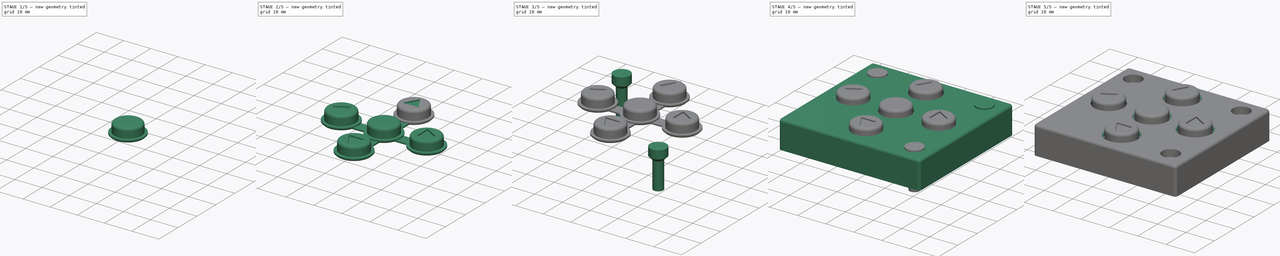
[diagram: build sequence overview — one tinted view per stage of 5, left to right]
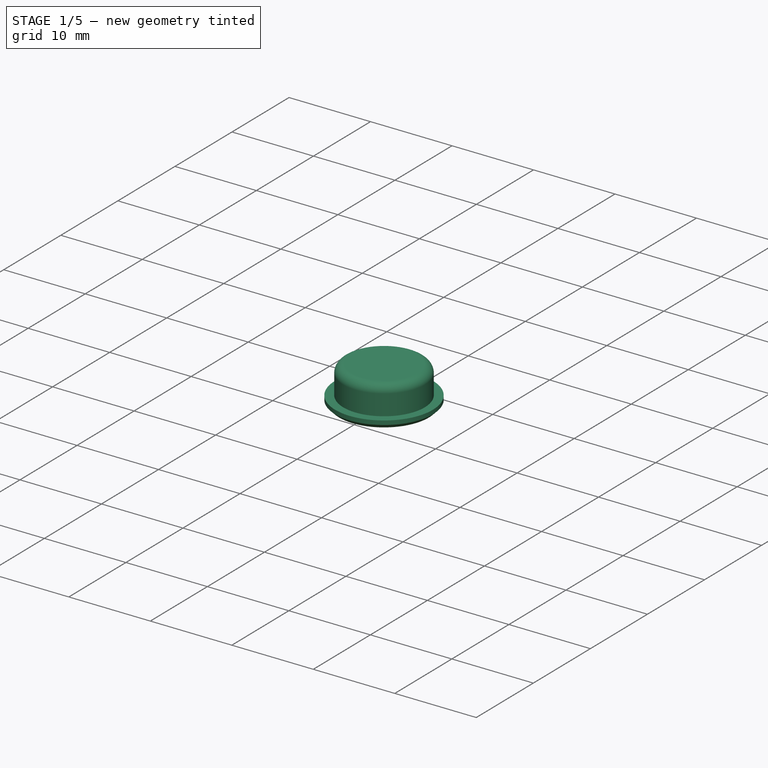
[diagram: stage 1 of 5 — iso view after this stage's code; geometry added in this stage tinted green]
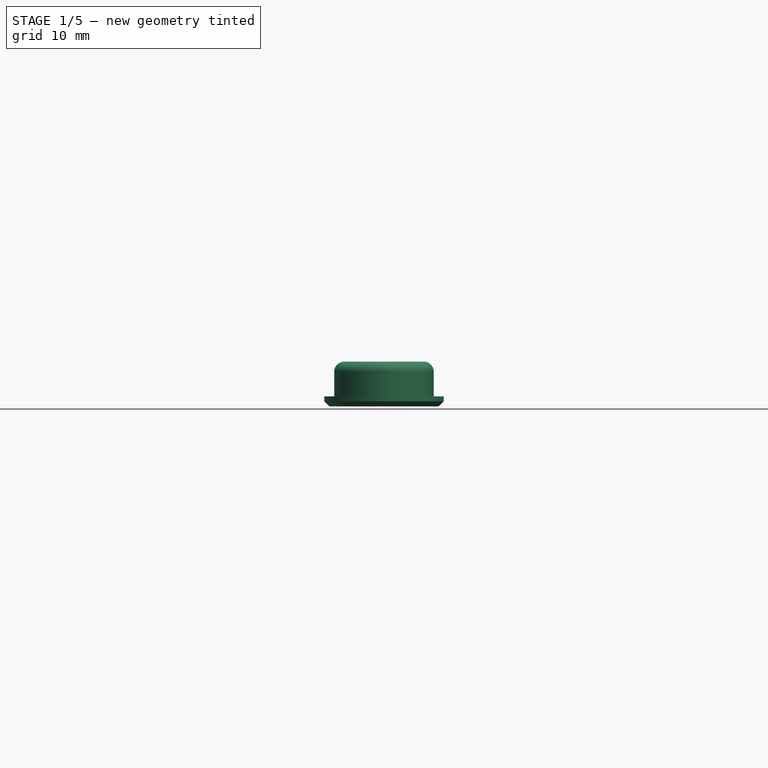
[diagram: stage 1 of 5 — front view after this stage's code; geometry added in this stage tinted green]
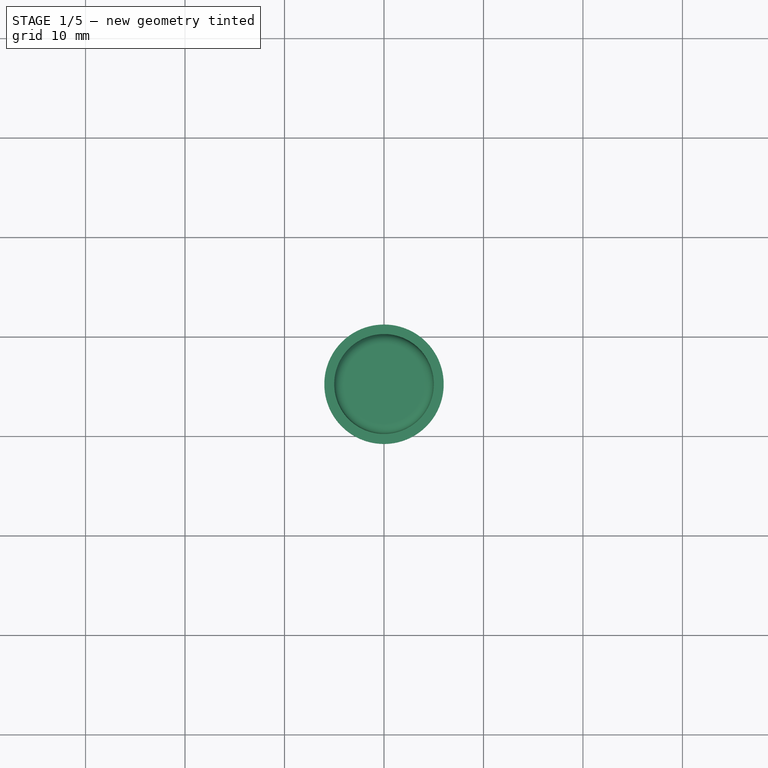
[diagram: stage 1 of 5 — top view after this stage's code; geometry added in this stage tinted green]
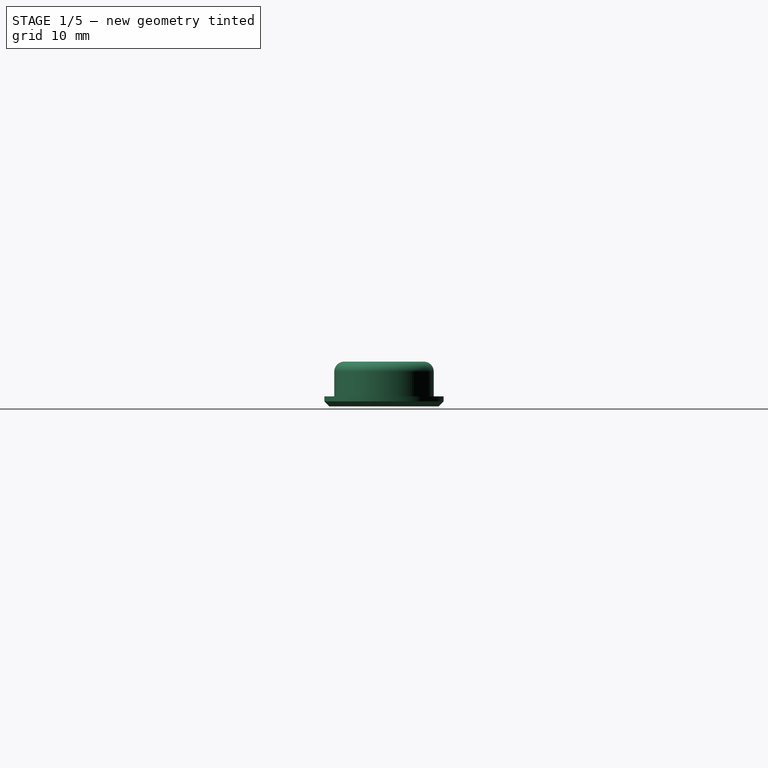
[diagram: stage 1 of 5 — right view after this stage's code; geometry added in this stage tinted green]
FCSTD DOCUMENT  (FreeCAD 0.14R3692 (Git))
Label: Addon-KeypadButtons
License: CC-BY 3.0
LicenseURL: http://creativecommons.org/licenses/by/3.0/
objects: Part::FeaturePython×5, Sketcher::SketchObject×5, Part::Cylinder×4, Part::MultiFuse×4, PartDesign::Pocket×4, Part::Box×3, Part::Chamfer×2, PartDesign::PolarPattern×2, PartDesign::Mirrored×2, Part::Fillet×1, Part::Thickness×1, PartDesign::Pad×1, PartDesign::MultiTransform×1, Part::Cone×1, Part::Cut×1
note: 42 computed .brp shape members not serialized (recipe doc carries the construction recipe); baked Part::Feature solids carry a one-line shape summary decoded from their .brp

FEATURE [Part::Cylinder] Cylinder
  Angle = 360
  Height = 1
  Radius = 6
FEATURE [Part::Cylinder] Cylinder001
  Angle = 360
  Height = 4.5
  Radius = 5
FEATURE [Part::Fillet] Fillet
  Base = -> Cylinder001
  Edges = 1 edges r=1: [Edge1]
FEATURE [Part::Chamfer] Chamfer
  Base = -> Cylinder
  Edges = 1 edges r=0.5: [Edge3]
FEATURE [Part::MultiFuse] Fusion
  Shapes = -> [Fillet,Chamfer]
FEATURE [Part::FeaturePython] Clone  label="Clone of Fusion"  # Draft clone (typed FeaturePython)
  Objects = -> [Fusion]
  Placement = pos=(0,15.24,0) rot=(0,0,1;0rad)
  Scale = (1,1,1)
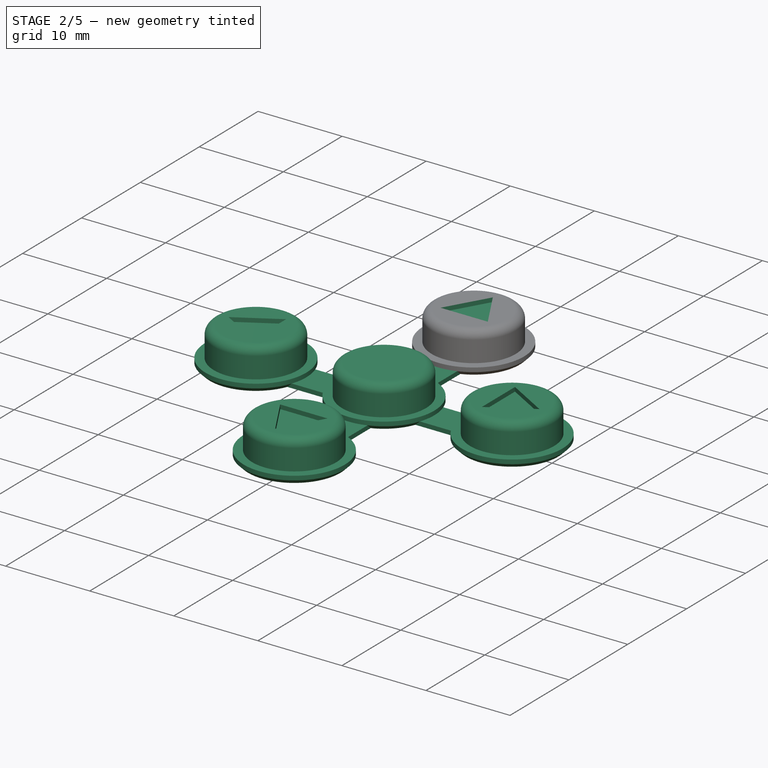
[diagram: stage 2 of 5 — iso view after this stage's code; geometry added in this stage tinted green]
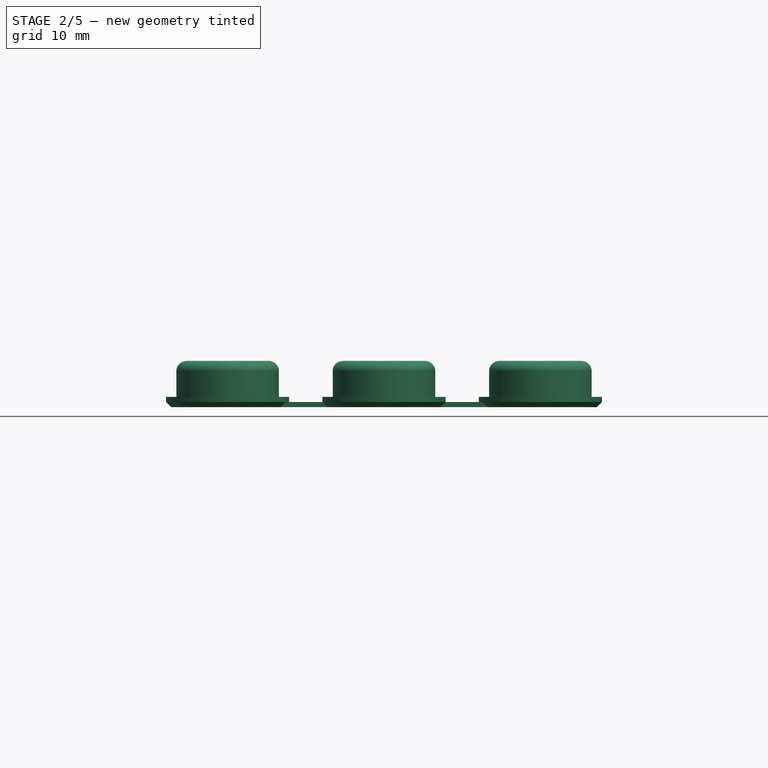
[diagram: stage 2 of 5 — front view after this stage's code; geometry added in this stage tinted green]
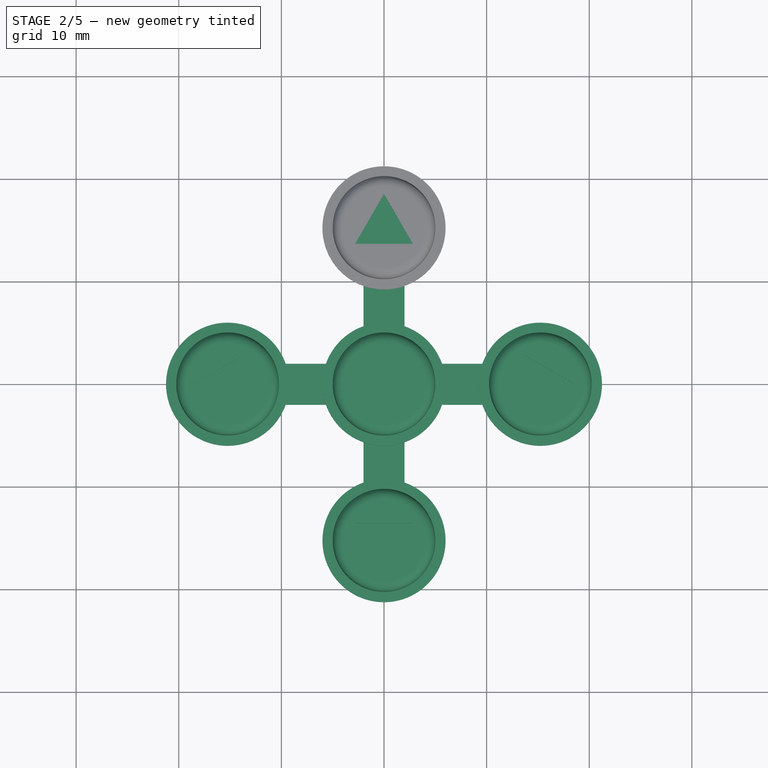
[diagram: stage 2 of 5 — top view after this stage's code; geometry added in this stage tinted green]
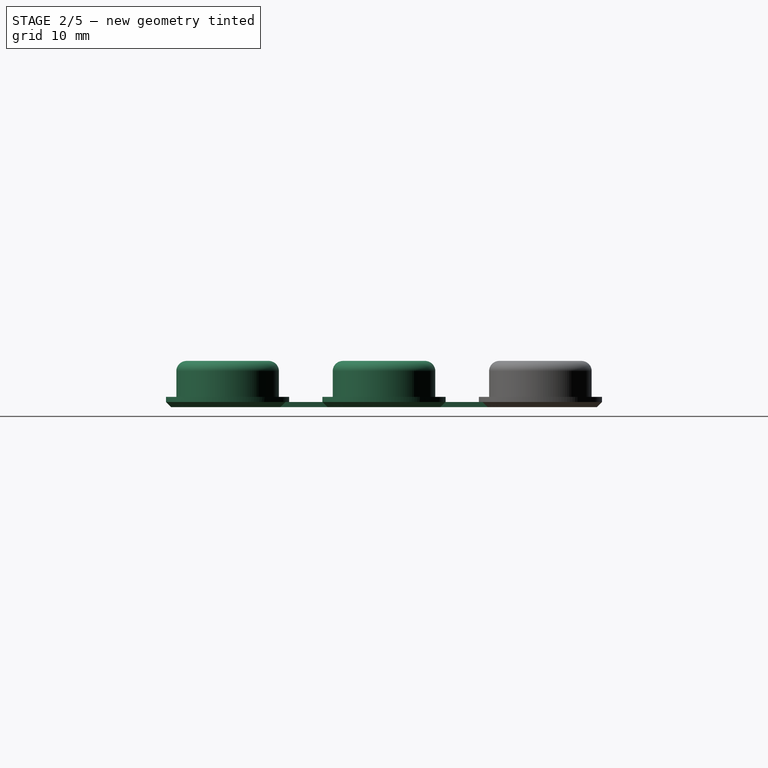
[diagram: stage 2 of 5 — right view after this stage's code; geometry added in this stage tinted green]
FEATURE [Part::Box] Box  label="Cube"
  Height = 0.5
  Length = 30.48
  Placement = pos=(-15.24,-2,0) rot=(0,0,1;0rad)
  Width = 4
FEATURE [Part::Box] Box001  label="Cube001"
  Height = 0.5
  Length = 30.48
  Placement = pos=(2,-15.24,0) rot=(0,0,1;1.5708rad)
  Width = 4
FEATURE [Part::FeaturePython] Array  # Draft array (typed FeaturePython)
  Angle = 360
  ArrayType = 1
  Axis = (0,0,1)
  Base = -> Clone
  Center = (0,0,0)
  IntervalX = (1,0,0)
  IntervalY = (0,1,0)
  IntervalZ = (0,0,1)
  NumberPolar = 4
  NumberX = 2
  NumberY = 2
  NumberZ = 1
FEATURE [Part::MultiFuse] Fusion001
  Shapes = -> [Array,Fusion,Box,Box001]
FEATURE [Sketcher::SketchObject] Sketch004
  ExternalGeometry = -> [Fusion001]
  Placement = pos=(0,0,4.5) rot=(0,0,1;0rad)
  Support = -> Fusion001 [Face3]
  sketch-geometry (4):
    g0: Circle [constr] CenterX=0 CenterY=15.24 CenterZ=0 NormalX=0 NormalY=0 NormalZ=1 Radius=3.25
    g1: LineSegment StartX=0 StartY=18.49 StartZ=0 EndX=-2.81458 EndY=13.615 EndZ=0
    g2: LineSegment StartX=-2.81458 StartY=13.615 StartZ=0 EndX=2.81458 EndY=13.615 EndZ=0
    g3: LineSegment StartX=2.81458 StartY=13.615 StartZ=0 EndX=0 EndY=18.49 EndZ=0
  constraints (11):
    c: Coincident(g0,g-3)
    c: Radius(g0) = 3.25
    c: PointOnObject(g1,g0)
    c: PointOnObject(g1,g0)
    c: Coincident(g1,g2)
    c: Coincident(g2,g3)
    c: Coincident(g3,g1)
    c: PointOnObject(g2,g0)
    c: Horizontal(g2)
    c: Equal(g2,g3)
    c: Equal(g3,g1)
FEATURE [PartDesign::Pocket] Pocket003
  Length = 0.5
  Sketch = -> Sketch004
  Type = 0
FEATURE [PartDesign::PolarPattern] PolarPattern001
  Angle = 360
  Axis = -> Sketch004 [N_Axis]
  Occurrences = 4
  Originals = -> [Pocket003]
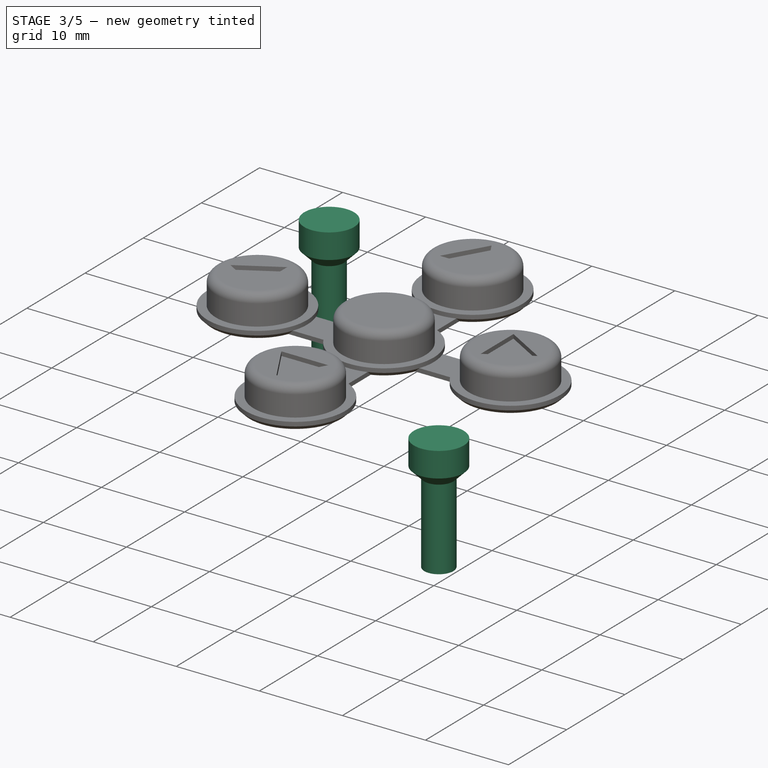
[diagram: stage 3 of 5 — iso view after this stage's code; geometry added in this stage tinted green]
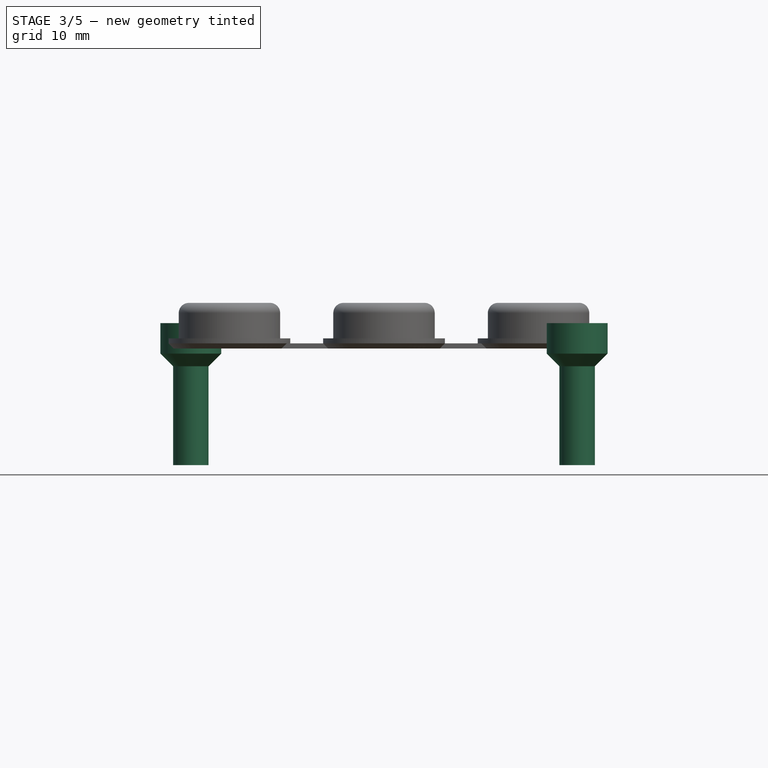
[diagram: stage 3 of 5 — front view after this stage's code; geometry added in this stage tinted green]
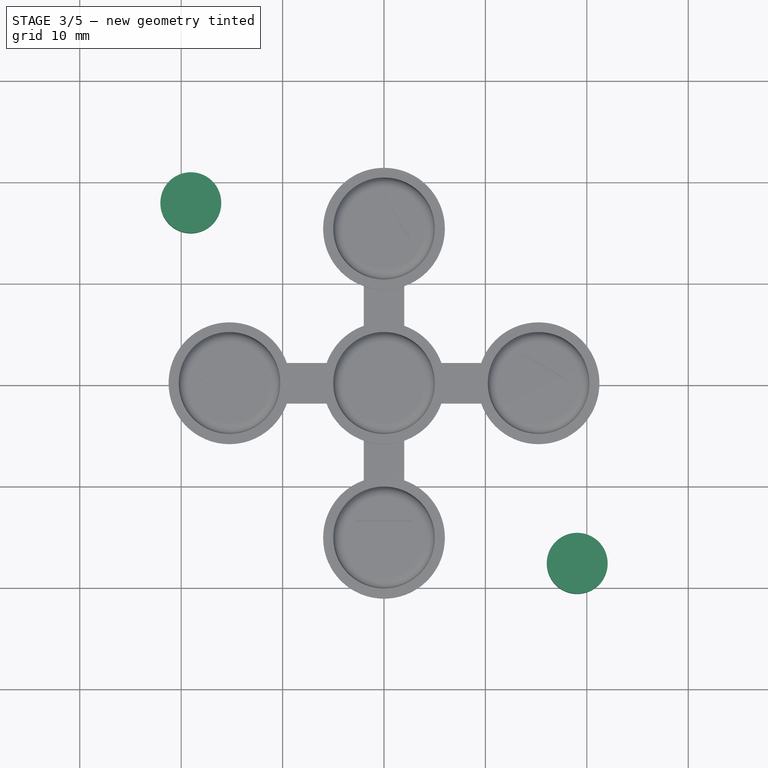
[diagram: stage 3 of 5 — top view after this stage's code; geometry added in this stage tinted green]
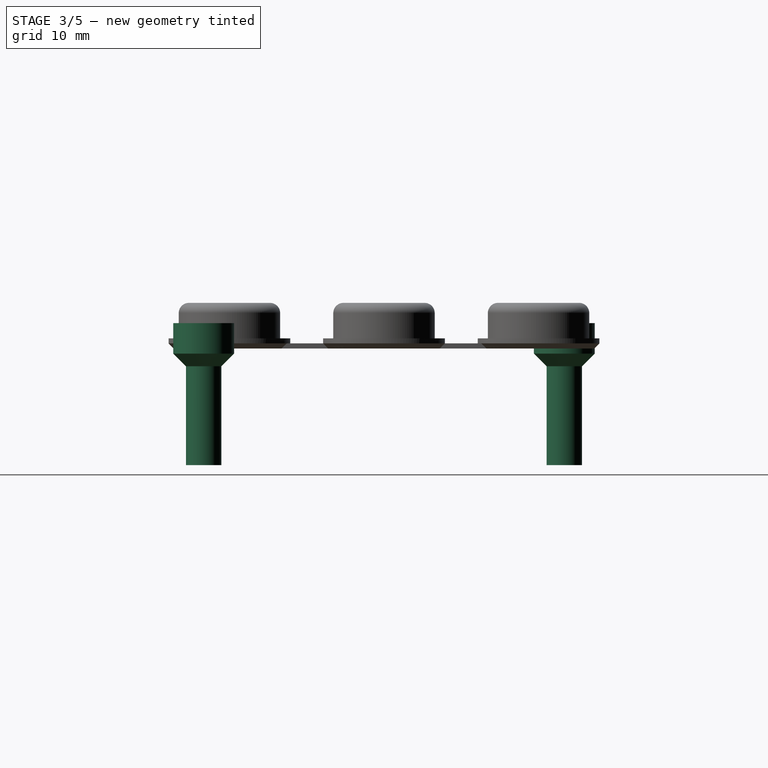
[diagram: stage 3 of 5 — right view after this stage's code; geometry added in this stage tinted green]
FEATURE [Part::Cylinder] Cylinder002
  Angle = 360
  Height = 10
  Radius = 1.75
FEATURE [Part::Cone] Cone
  Angle = 360
  Height = 2
  Placement = pos=(0,0,9) rot=(0,0,1;0rad)
  Radius1 = 1
  Radius2 = 3
FEATURE [Part::Cylinder] Cylinder003
  Angle = 360
  Height = 3
  Placement = pos=(0,0,11) rot=(0,0,1;0rad)
  Radius = 3
FEATURE [Part::MultiFuse] Fusion002
  Shapes = -> [Cylinder003,Cone,Cylinder002]
FEATURE [Part::FeaturePython] Clone002  label="Clone of Fusion003"  # Draft clone (typed FeaturePython)
  Objects = -> [Fusion002]
  Placement = pos=(-19.05,17.78,-11.5) rot=(0,0,1;0rad)
  Scale = (1,1,1)
FEATURE [Part::FeaturePython] Clone003  label="Clone of Fusion004"  # Draft clone (typed FeaturePython)
  Objects = -> [Fusion002]
  Placement = pos=(19.05,-17.78,-11.5) rot=(0,0,1;0rad)
  Scale = (1,1,1)
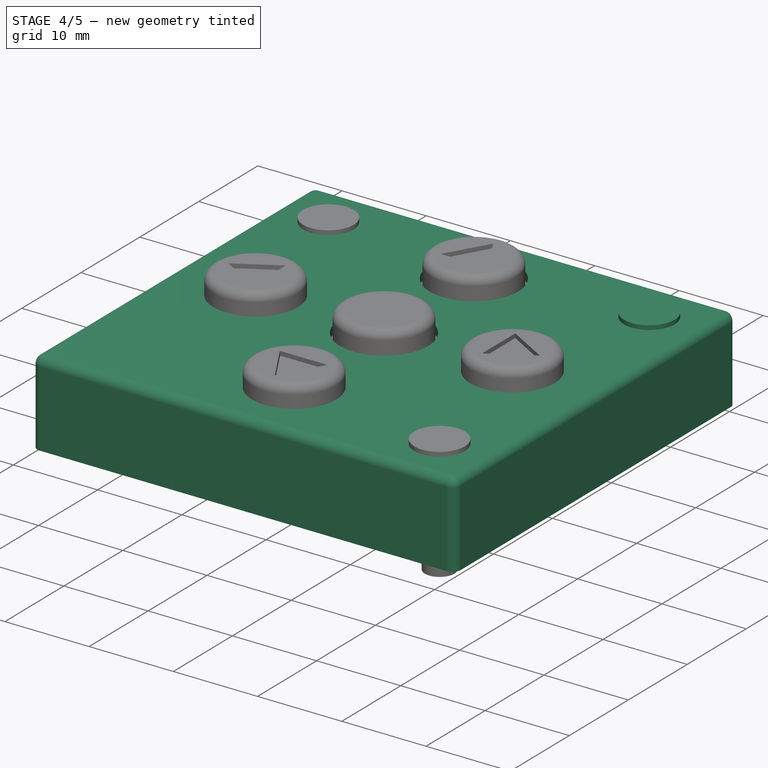
[diagram: stage 4 of 5 — iso view after this stage's code; geometry added in this stage tinted green]
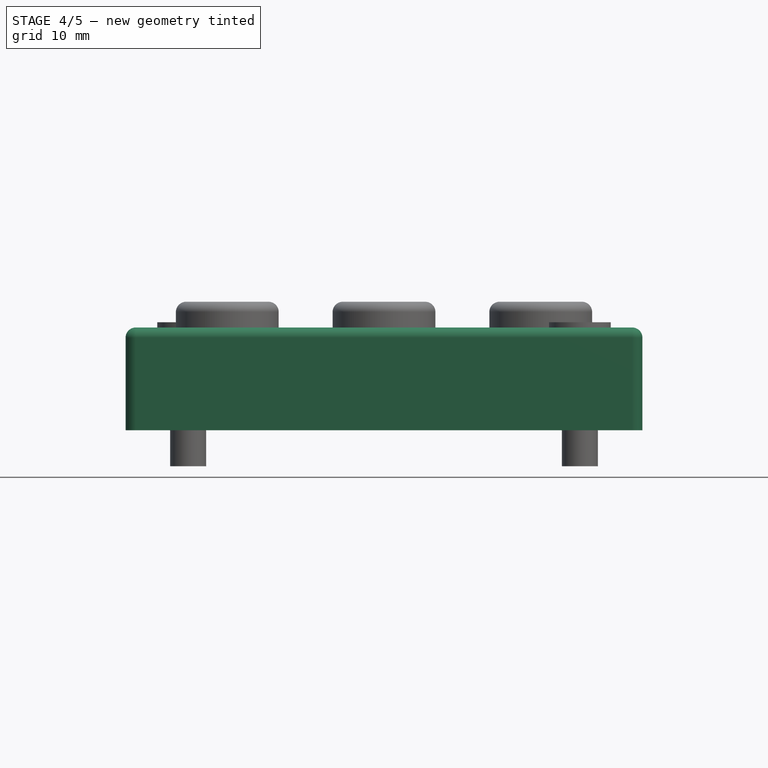
[diagram: stage 4 of 5 — front view after this stage's code; geometry added in this stage tinted green]
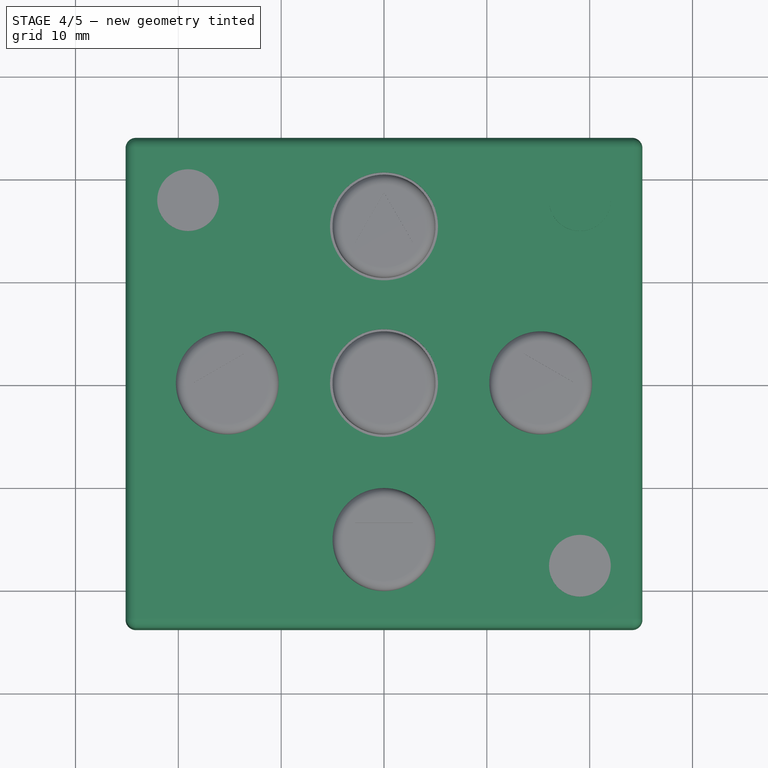
[diagram: stage 4 of 5 — top view after this stage's code; geometry added in this stage tinted green]
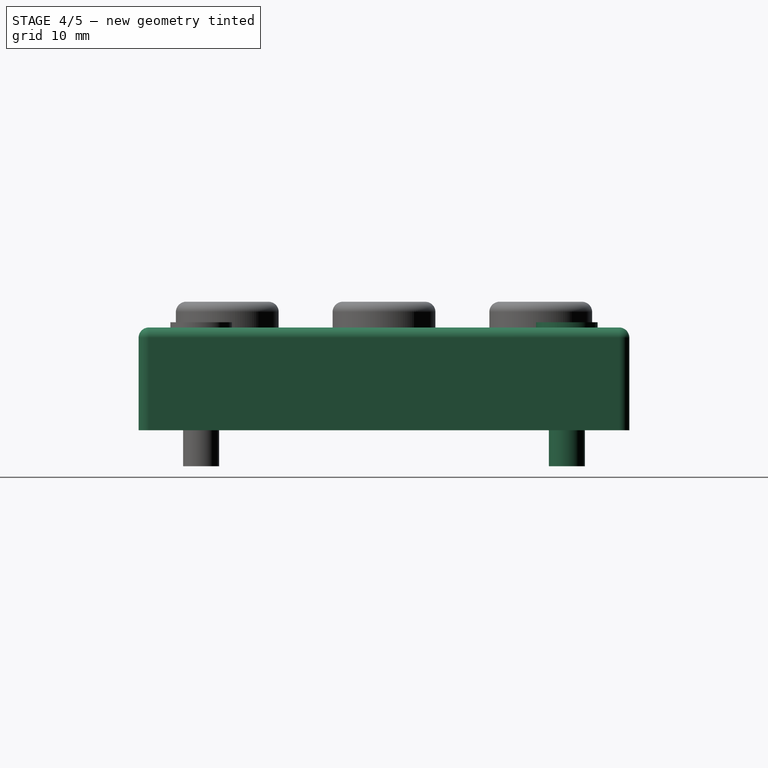
[diagram: stage 4 of 5 — right view after this stage's code; geometry added in this stage tinted green]
FEATURE [Part::Box] Box002  label="Cube002"
  Height = 9
  Length = 48.26
  Placement = pos=(-24.13,-22.86,-8) rot=(0,0,1;0rad)
  Width = 45.72
FEATURE [Part::Thickness] Thickness
  Faces = -> Box002 [Face5]
  Intersection = false
  Join = 0
  Mode = 0
  SelfIntersection = false
  Value = 1
FEATURE [Sketcher::SketchObject] Sketch
  Placement = pos=(0,0,2) rot=(0,0,1;0rad)
  Support = -> Thickness [Face23]
  sketch-geometry (1):
    g0: Circle CenterX=0 CenterY=0 CenterZ=0 NormalX=0 NormalY=0 NormalZ=1 Radius=5.25
  constraints (2):
    c: Coincident(g0,g-1)
    c: Radius(g0) = 5.25
FEATURE [PartDesign::Pocket] Pocket
  Length = 5
  Sketch = -> Sketch
  Type = 0
FEATURE [Sketcher::SketchObject] Sketch001
  Placement = pos=(0,0,2) rot=(0,0,1;0rad)
  Support = -> Pocket [Face16]
  sketch-geometry (1):
    g0: Circle CenterX=0 CenterY=15.24 CenterZ=0 NormalX=0 NormalY=0 NormalZ=1 Radius=5.25
  constraints (3):
    c: PointOnObject(g0,g-2)
    c: Radius(g0) = 5.25
    c: DistanceY(g-1,g0) = 15.24
FEATURE [PartDesign::Pocket] Pocket001
  Length = 5
  Sketch = -> Sketch001
  Type = 0
FEATURE [Part::FeaturePython] Clone001  label="Clone of Fusion002"  # Draft clone (typed FeaturePython)
  Objects = -> [Fusion002]
  Placement = pos=(19.05,17.78,-11.5) rot=(0,0,1;0rad)
  Scale = (1,1,1)
FEATURE [Part::MultiFuse] Fusion003
  Shapes = -> [Clone002,Clone003,Clone001]
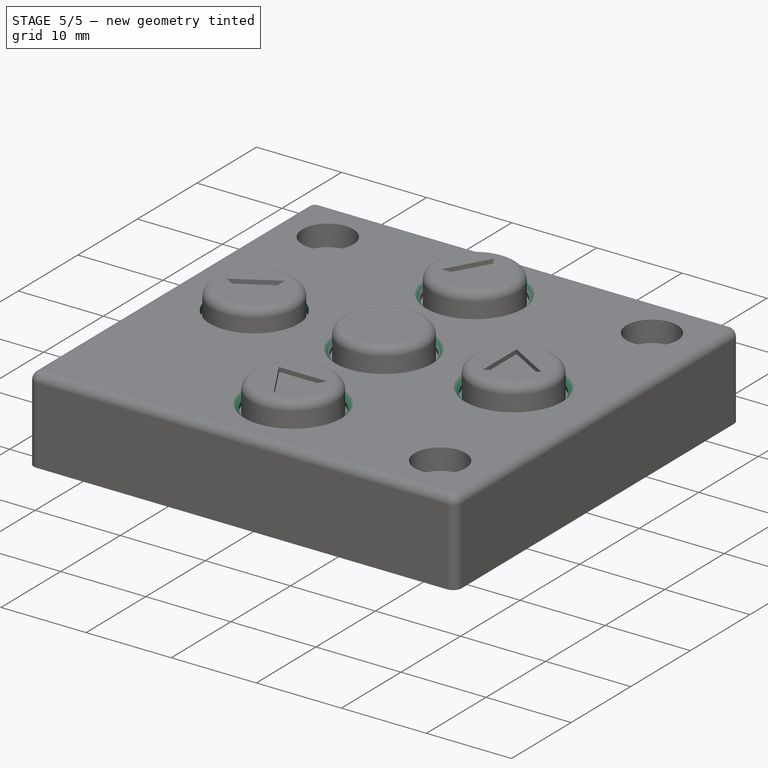
[diagram: stage 5 of 5 — iso view after this stage's code; geometry added in this stage tinted green]
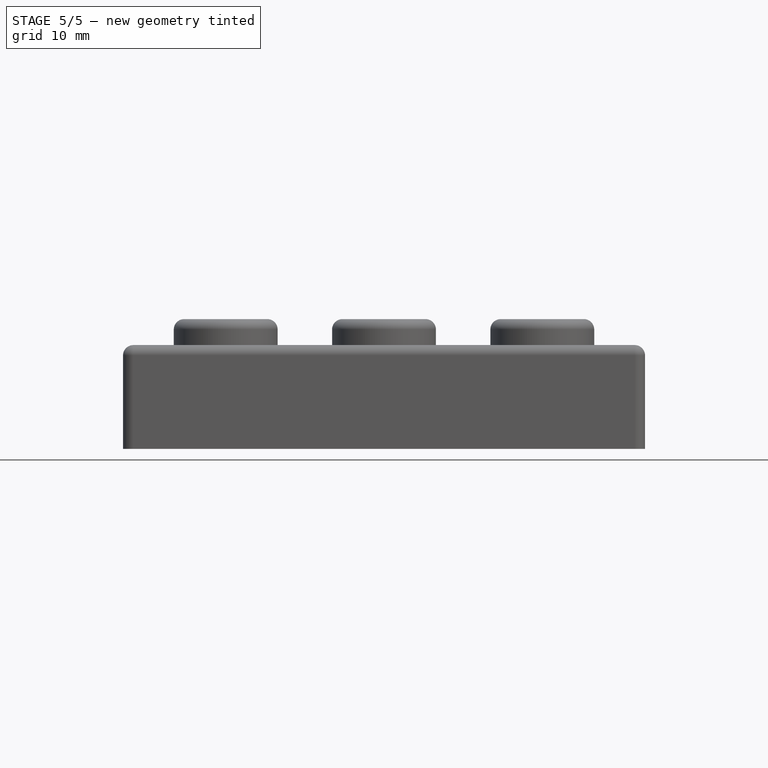
[diagram: stage 5 of 5 — front view after this stage's code; geometry added in this stage tinted green]
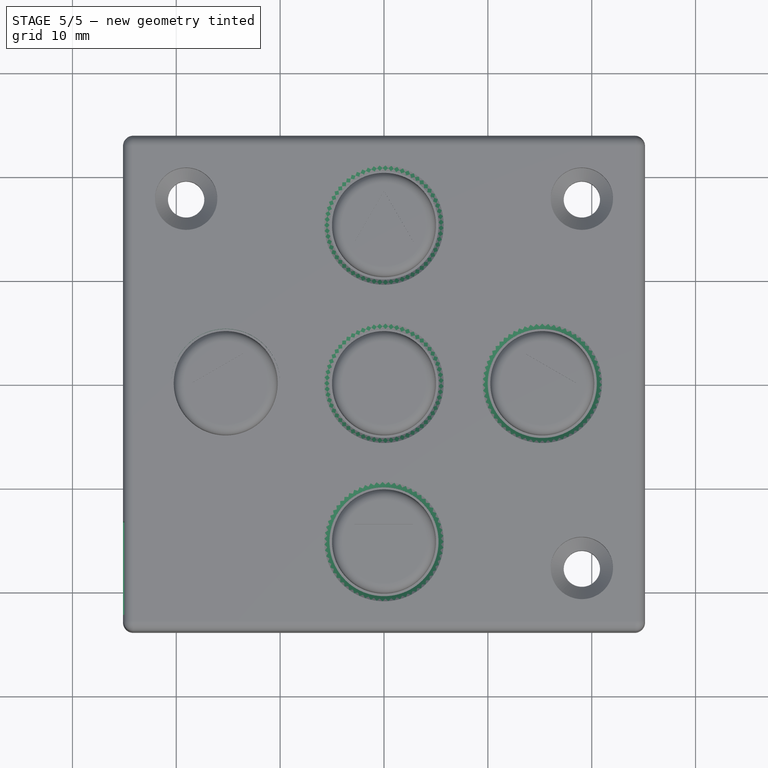
[diagram: stage 5 of 5 — top view after this stage's code; geometry added in this stage tinted green]
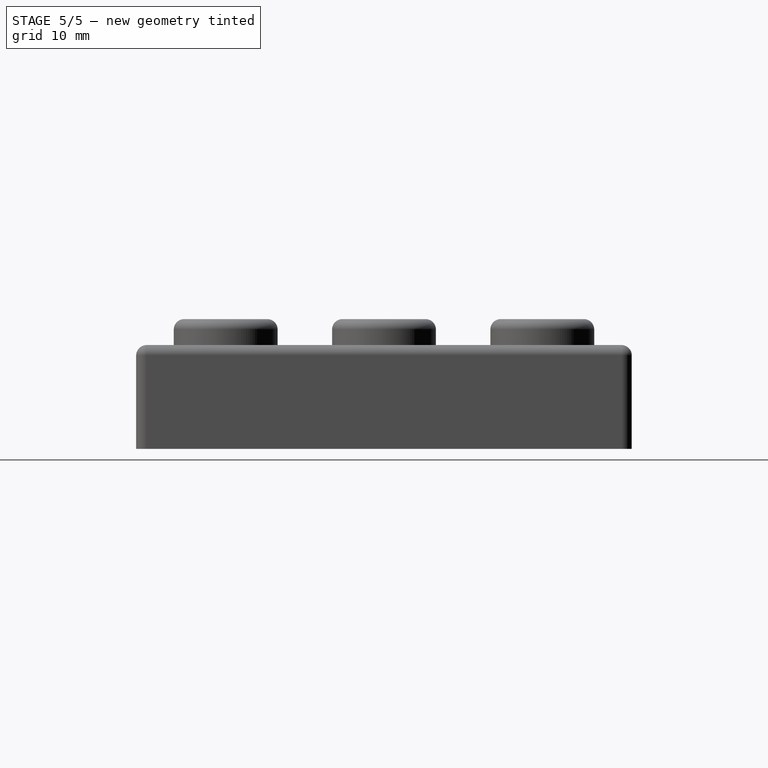
[diagram: stage 5 of 5 — right view after this stage's code; geometry added in this stage tinted green]
FEATURE [PartDesign::PolarPattern] PolarPattern
  Angle = 360
  Axis = -> Sketch001 [N_Axis]
  Occurrences = 4
  Originals = -> [Pocket001]
FEATURE [Sketcher::SketchObject] Sketch002
  Placement = pos=(0,0,1) rot=(1,0,0;3.14159rad)
  Support = -> PolarPattern [Face3]
  sketch-geometry (5):
    g0: ArcOfCircle CenterX=19.05 CenterY=-17.78 CenterZ=0 NormalX=0 NormalY=0 NormalZ=1 Radius=4 StartAngle=1.5708 EndAngle=3.14159
    g1: LineSegment StartX=15.05 StartY=-17.78 StartZ=0 EndX=15.05 EndY=-23.36 EndZ=0
    g2: LineSegment StartX=15.05 StartY=-23.36 StartZ=0 EndX=24.63 EndY=-23.36 EndZ=0
    g3: LineSegment StartX=24.63 StartY=-23.36 StartZ=0 EndX=24.63 EndY=-13.78 EndZ=0
    g4: LineSegment StartX=24.63 StartY=-13.78 StartZ=0 EndX=19.05 EndY=-13.78 EndZ=0
  constraints (16):
    c: DistanceX(g-1,g0) = 19.05
    c: DistanceY(g-1,g0) = -17.78
    c: Radius(g0) = 4
    c: Coincident(g1,g2)
    c: Horizontal(g2)
    c: Coincident(g2,g3)
    c: Coincident(g3,g4)
    c: Horizontal(g4)
    c: Coincident(g4,g0)
    c: Coincident(g1,g0)
    c: Tangent(g0,g1)
    c: Vertical(g1)
    c: Tangent(g4,g0)
    c: Vertical(g3)
    c: DistanceX(g-1,g2) = 24.63
    c: DistanceY(g-1,g2) = -23.36
FEATURE [PartDesign::Pad] Pad
  Length = 6
  Length2 = 100
  Sketch = -> Sketch002
  Type = 0
FEATURE [PartDesign::Mirrored] Mirrored
  MirrorPlane = -> Sketch002 [V_Axis]
FEATURE [PartDesign::Mirrored] Mirrored001
  MirrorPlane = -> Sketch002 [H_Axis]
FEATURE [PartDesign::MultiTransform] MultiTransform
  Originals = -> [Pad]
  Transformations = -> [Mirrored,Mirrored001]
FEATURE [Sketcher::SketchObject] Sketch003
  Placement = pos=(-25.13,0,0) rot=(0.57735,-0.57735,-0.57735;2.0944rad)
  Support = -> MultiTransform [Face13]
  sketch-geometry (4):
    g0: LineSegment StartX=22.28 StartY=-5 StartZ=0 EndX=13.28 EndY=-5 EndZ=0
    g1: LineSegment StartX=13.28 StartY=-5 StartZ=0 EndX=13.28 EndY=1.5 EndZ=0
    g2: LineSegment StartX=13.28 StartY=1.5 StartZ=0 EndX=22.28 EndY=1.5 EndZ=0
    g3: LineSegment StartX=22.28 StartY=1.5 StartZ=0 EndX=22.28 EndY=-5 EndZ=0
  constraints (12):
    c: Coincident(g0,g1)
    c: Coincident(g1,g2)
    c: Coincident(g2,g3)
    c: Coincident(g3,g0)
    c: Horizontal(g0)
    c: Horizontal(g2)
    c: Vertical(g1)
    c: Vertical(g3)
    c: DistanceX(g0) = -9
    c: DistanceY(g3) = -6.5
    c: DistanceY(g-1,g2) = 1.5
    c: DistanceX(g-1,g2) = 22.28
FEATURE [PartDesign::Pocket] Pocket002
  Length = 11.35
  Sketch = -> Sketch003
  Type = 0
  UpToFace = -> MultiTransform [Face26]
FEATURE [Part::Cut] Cut
  Base = -> Pocket002
  Tool = -> Fusion003
FEATURE [Part::Chamfer] Chamfer001
  Base = -> Cut
  Edges = 4 edges r=0.5: [Edge103,Edge105,Edge109,Edge111]
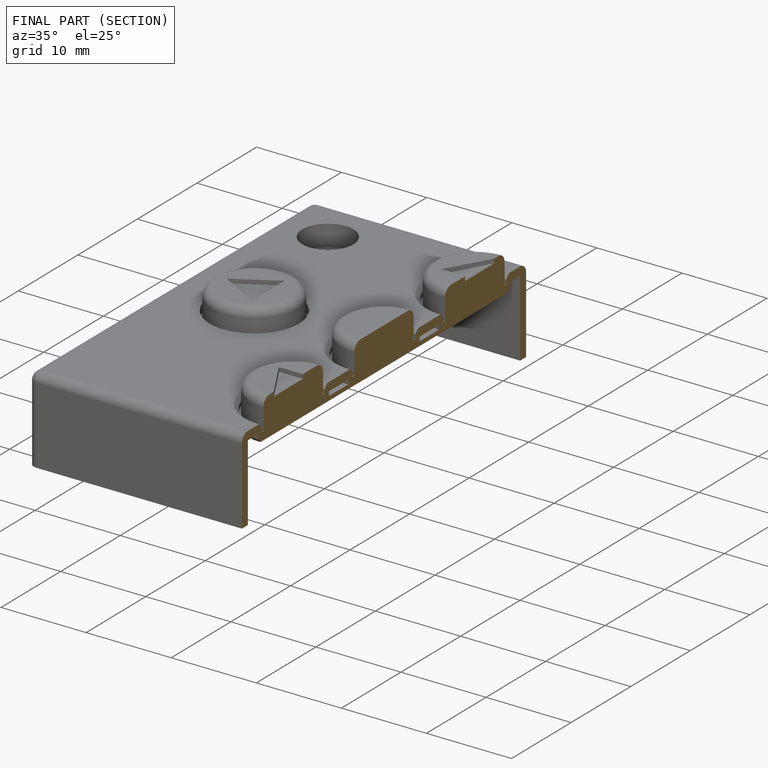
[diagram: finished part — half-section view (interior)]
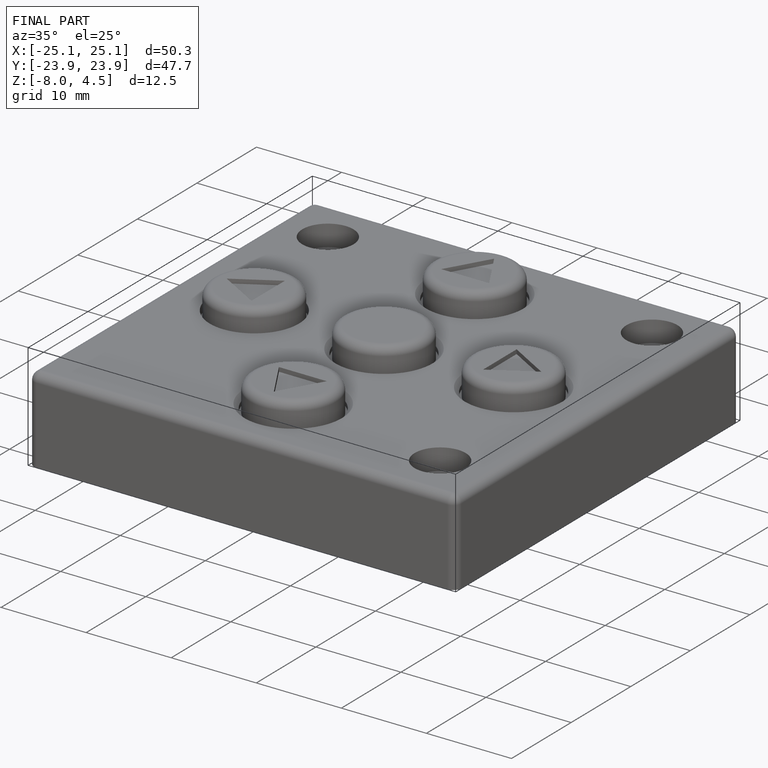
[diagram: finished part — iso view with bounding-box wireframe]
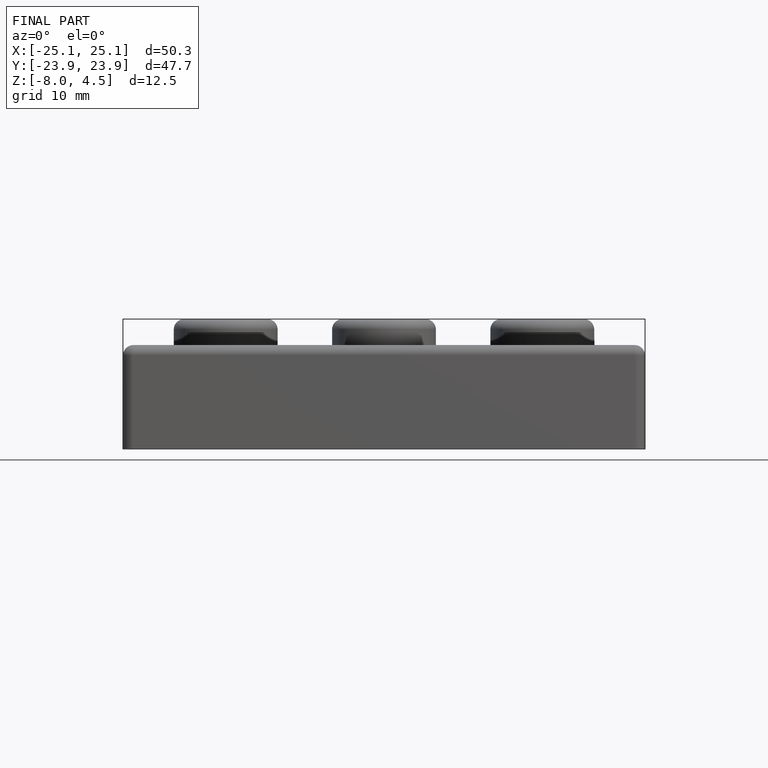
[diagram: finished part — front view with bounding-box wireframe]
